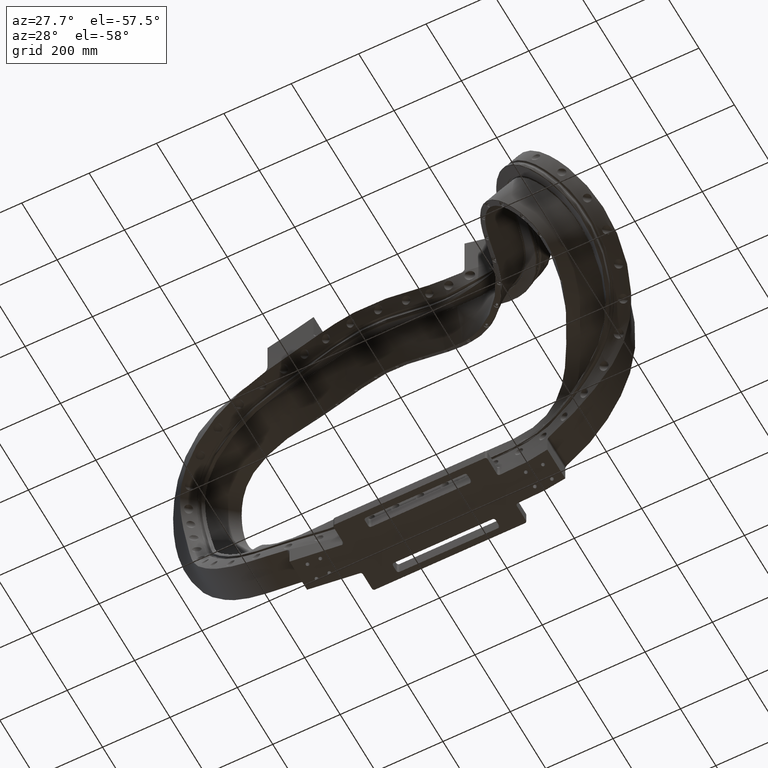
[diagram: clean part render]
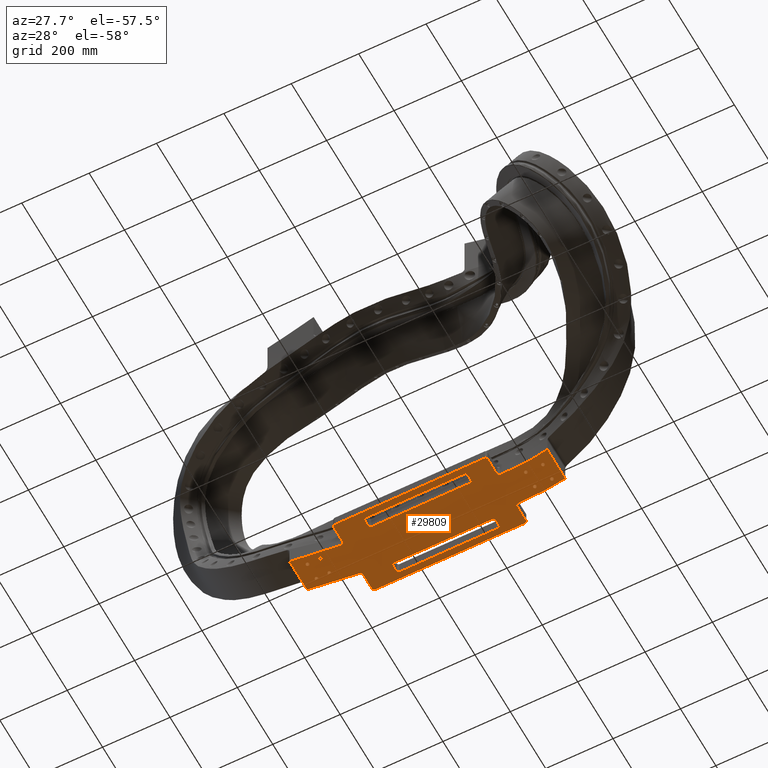
[diagram: same view with one face highlighted and labeled with its STEP entity id]
A machine part, auxiliary view. The second image highlights one B-rep face of the part: STEP entity #29809.
In plain terms, the highlighted planar face has unit normal (0, 0, 1).
Its self-contained STEP definition (entity closure, byte-faithful):
#2104=CARTESIAN_POINT('',(-6.25E0,-2.198911665966E0,-1.75E1));
#2105=DIRECTION('',(0.E0,0.E0,1.E0));
#2106=DIRECTION('',(1.E0,0.E0,0.E0));
#2107=AXIS2_PLACEMENT_3D('',#2104,#2105,#2106);
#2318=CARTESIAN_POINT('',(1.225E1,2.228150653155E0,-1.75E1));
#2319=DIRECTION('',(0.E0,0.E0,1.E0));
#2320=DIRECTION('',(-1.E0,0.E0,0.E0));
#2321=AXIS2_PLACEMENT_3D('',#2318,#2319,#2320);
#7294=CARTESIAN_POINT('',(1.8E1,1.573647857411E0,-1.75E1));
#7295=CARTESIAN_POINT('',(1.758986111454E1,1.647777544079E0,-1.75E1));
#7296=CARTESIAN_POINT('',(1.655270009245E1,1.805029458253E0,-1.75E1));
#7297=CARTESIAN_POINT('',(1.492958491415E1,1.935558353841E0,-1.75E1));
#7298=CARTESIAN_POINT('',(1.342222716420E1,1.971225090541E0,-1.75E1));
#7299=CARTESIAN_POINT('',(1.254631802311E1,1.977070630157E0,-1.75E1));
#7300=CARTESIAN_POINT('',(1.224909020015E1,1.978152308632E0,-1.75E1));
#7302=DIRECTION('',(0.E0,-1.E0,0.E0));
#7303=VECTOR('',#7302,2.021849346845E0);
#7304=CARTESIAN_POINT('',(1.2E1,4.25E0,-1.75E1));
#7305=LINE('',#7304,#7303);
#7306=CARTESIAN_POINT('',(1.175E1,4.25E0,-1.75E1));
#7307=DIRECTION('',(0.E0,0.E0,-1.E0));
#7308=DIRECTION('',(0.E0,1.E0,0.E0));
#7309=AXIS2_PLACEMENT_3D('',#7306,#7307,#7308);
#7311=DIRECTION('',(1.E0,0.E0,0.E0));
#7312=VECTOR('',#7311,1.75E1);
#7313=CARTESIAN_POINT('',(-5.75E0,4.5E0,-1.75E1));
#7314=LINE('',#7313,#7312);
#7315=CARTESIAN_POINT('',(-5.75E0,4.25E0,-1.75E1));
#7316=DIRECTION('',(0.E0,0.E0,-1.E0));
#7317=DIRECTION('',(-1.E0,0.E0,0.E0));
#7318=AXIS2_PLACEMENT_3D('',#7315,#7316,#7317);
#7320=DIRECTION('',(0.E0,1.E0,0.E0));
#7321=VECTOR('',#7320,2.005883960381E0);
#7322=CARTESIAN_POINT('',(-6.E0,2.244116039619E0,-1.75E1));
#7323=LINE('',#7322,#7321);
#7324=CARTESIAN_POINT('',(-6.235389363387E0,1.994543346205E0,-1.75E1));
#7325=CARTESIAN_POINT('',(-6.575664149607E0,1.974622772435E0,-1.75E1));
#7326=CARTESIAN_POINT('',(-7.438341765973E0,1.901887223503E0,-1.75E1));
#7327=CARTESIAN_POINT('',(-8.844647272770E0,1.685962256159E0,-1.75E1));
#7328=CARTESIAN_POINT('',(-1.041765306299E1,1.407770153295E0,-1.75E1));
#7329=CARTESIAN_POINT('',(-1.148499650619E1,1.284796230786E0,-1.75E1));
#7330=CARTESIAN_POINT('',(-1.2E1,1.247522495661E0,-1.75E1));
#7332=DIRECTION('',(0.E0,-1.E0,0.E0));
#7333=VECTOR('',#7332,3.894547487956E0);
#7334=CARTESIAN_POINT('',(-1.2E1,1.247522495661E0,-1.75E1));
#7335=LINE('',#7334,#7333);
#7336=CARTESIAN_POINT('',(-1.2E1,-2.647024992295E0,-1.75E1));
#7337=CARTESIAN_POINT('',(-1.147515806822E1,-2.617162721085E0,-1.75E1));
#7338=CARTESIAN_POINT('',(-1.065975321890E1,-2.538681203800E0,-1.75E1));
#7339=CARTESIAN_POINT('',(-9.574770886855E0,-2.382282303911E0,-1.75E1));
#7340=CARTESIAN_POINT('',(-8.498140849961E0,-2.209587277860E0,-1.75E1));
#7341=CARTESIAN_POINT('',(-7.402576861671E0,-2.042113127539E0,-1.75E1));
#7342=CARTESIAN_POINT('',(-6.575390467964E0,-1.969167538538E0,-1.75E1));
#7343=CARTESIAN_POINT('',(-6.265921048622E0,-1.949419140605E0,-1.75E1));
#7345=DIRECTION('',(0.E0,1.E0,0.E0));
#7346=VECTOR('',#7345,2.051088334034E0);
#7347=CARTESIAN_POINT('',(-6.E0,-4.25E0,-1.75E1));
#7348=LINE('',#7347,#7346);
#7349=CARTESIAN_POINT('',(-5.75E0,-4.25E0,-1.75E1));
#7350=DIRECTION('',(0.E0,0.E0,-1.E0));
#7351=DIRECTION('',(0.E0,-1.E0,0.E0));
#7352=AXIS2_PLACEMENT_3D('',#7349,#7350,#7351);
#7354=DIRECTION('',(-1.E0,0.E0,0.E0));
#7355=VECTOR('',#7354,1.75E1);
#7356=CARTESIAN_POINT('',(1.175E1,-4.5E0,-1.75E1));
#7357=LINE('',#7356,#7355);
#7358=CARTESIAN_POINT('',(1.175E1,-4.25E0,-1.75E1));
#7359=DIRECTION('',(0.E0,0.E0,-1.E0));
#7360=DIRECTION('',(1.E0,0.E0,0.E0));
#7361=AXIS2_PLACEMENT_3D('',#7358,#7359,#7360);
#7363=DIRECTION('',(0.E0,-1.E0,0.E0));
#7364=VECTOR('',#7363,2.038154202992E0);
#7365=CARTESIAN_POINT('',(1.2E1,-2.211845797008E0,-1.75E1));
#7366=LINE('',#7365,#7364);
#7367=CARTESIAN_POINT('',(1.225090990235E1,-1.961847452858E0,-1.75E1));
#7368=CARTESIAN_POINT('',(1.251486702471E1,-1.962808160043E0,-1.75E1));
#7369=CARTESIAN_POINT('',(1.328440960820E1,-1.967649651717E0,-1.75E1));
#7370=CARTESIAN_POINT('',(1.457298786828E1,-1.993693579347E0,-1.75E1));
#7371=CARTESIAN_POINT('',(1.612211315348E1,-2.102667733688E0,-1.75E1));
#7372=CARTESIAN_POINT('',(1.726699480316E1,-2.274617057738E0,-1.75E1));
#7373=CARTESIAN_POINT('',(1.789211775409E1,-2.398911459330E0,-1.75E1));
#7374=CARTESIAN_POINT('',(1.8E1,-2.421207084953E0,-1.75E1));
#7376=DIRECTION('',(0.E0,1.E0,0.E0));
#7377=VECTOR('',#7376,3.994854942363E0);
#7378=CARTESIAN_POINT('',(1.8E1,-2.421207084953E0,-1.75E1));
#7379=LINE('',#7378,#7377);
#7380=CARTESIAN_POINT('',(1.675E1,-1.E0,-1.75E1));
#7381=DIRECTION('',(0.E0,0.E0,-1.E0));
#7382=DIRECTION('',(-1.E0,0.E0,0.E0));
#7383=AXIS2_PLACEMENT_3D('',#7380,#7381,#7382);
#7385=CARTESIAN_POINT('',(1.675E1,-1.E0,-1.75E1));
#7386=DIRECTION('',(0.E0,0.E0,-1.E0));
#7387=DIRECTION('',(1.E0,0.E0,0.E0));
#7388=AXIS2_PLACEMENT_3D('',#7385,#7386,#7387);
#7390=CARTESIAN_POINT('',(1.475E1,-1.E0,-1.75E1));
#7391=DIRECTION('',(0.E0,0.E0,-1.E0));
#7392=DIRECTION('',(-1.E0,0.E0,0.E0));
#7393=AXIS2_PLACEMENT_3D('',#7390,#7391,#7392);
#7395=CARTESIAN_POINT('',(1.475E1,-1.E0,-1.75E1));
#7396=DIRECTION('',(0.E0,0.E0,-1.E0));
#7397=DIRECTION('',(1.E0,0.E0,0.E0));
#7398=AXIS2_PLACEMENT_3D('',#7395,#7396,#7397);
#7400=CARTESIAN_POINT('',(1.675E1,1.E0,-1.75E1));
#7401=DIRECTION('',(0.E0,0.E0,-1.E0));
#7402=DIRECTION('',(-1.E0,0.E0,0.E0));
#7403=AXIS2_PLACEMENT_3D('',#7400,#7401,#7402);
#7405=CARTESIAN_POINT('',(1.675E1,1.E0,-1.75E1));
#7406=DIRECTION('',(0.E0,0.E0,-1.E0));
#7407=DIRECTION('',(1.E0,0.E0,0.E0));
#7408=AXIS2_PLACEMENT_3D('',#7405,#7406,#7407);
#7410=CARTESIAN_POINT('',(1.475E1,1.E0,-1.75E1));
#7411=DIRECTION('',(0.E0,0.E0,-1.E0));
#7412=DIRECTION('',(-1.E0,0.E0,0.E0));
#7413=AXIS2_PLACEMENT_3D('',#7410,#7411,#7412);
#7415=CARTESIAN_POINT('',(1.475E1,1.E0,-1.75E1));
#7416=DIRECTION('',(0.E0,0.E0,-1.E0));
#7417=DIRECTION('',(1.E0,0.E0,0.E0));
#7418=AXIS2_PLACEMENT_3D('',#7415,#7416,#7417);
#7420=CARTESIAN_POINT('',(-1.05E1,-1.5E0,-1.75E1));
#7421=DIRECTION('',(0.E0,0.E0,-1.E0));
#7422=DIRECTION('',(-1.E0,0.E0,0.E0));
#7423=AXIS2_PLACEMENT_3D('',#7420,#7421,#7422);
#7425=CARTESIAN_POINT('',(-1.05E1,-1.5E0,-1.75E1));
#7426=DIRECTION('',(0.E0,0.E0,-1.E0));
#7427=DIRECTION('',(1.E0,0.E0,0.E0));
#7428=AXIS2_PLACEMENT_3D('',#7425,#7426,#7427);
#7430=CARTESIAN_POINT('',(-9.E0,-1.5E0,-1.75E1));
#7431=DIRECTION('',(0.E0,0.E0,-1.E0));
#7432=DIRECTION('',(-1.E0,0.E0,0.E0));
#7433=AXIS2_PLACEMENT_3D('',#7430,#7431,#7432);
#7435=CARTESIAN_POINT('',(-9.E0,-1.5E0,-1.75E1));
#7436=DIRECTION('',(0.E0,0.E0,-1.E0));
#7437=DIRECTION('',(1.E0,0.E0,0.E0));
#7438=AXIS2_PLACEMENT_3D('',#7435,#7436,#7437);
#7440=CARTESIAN_POINT('',(-1.05E1,5.E-1,-1.75E1));
#7441=DIRECTION('',(0.E0,0.E0,-1.E0));
#7442=DIRECTION('',(-1.E0,0.E0,0.E0));
#7443=AXIS2_PLACEMENT_3D('',#7440,#7441,#7442);
#7445=CARTESIAN_POINT('',(-1.05E1,5.E-1,-1.75E1));
#7446=DIRECTION('',(0.E0,0.E0,-1.E0));
#7447=DIRECTION('',(1.E0,0.E0,0.E0));
#7448=AXIS2_PLACEMENT_3D('',#7445,#7446,#7447);
#7450=CARTESIAN_POINT('',(-9.E0,5.E-1,-1.75E1));
#7451=DIRECTION('',(0.E0,0.E0,-1.E0));
#7452=DIRECTION('',(-1.E0,0.E0,0.E0));
#7453=AXIS2_PLACEMENT_3D('',#7450,#7451,#7452);
#7455=CARTESIAN_POINT('',(-9.E0,5.E-1,-1.75E1));
#7456=DIRECTION('',(0.E0,0.E0,-1.E0));
#7457=DIRECTION('',(1.E0,0.E0,0.E0));
#7458=AXIS2_PLACEMENT_3D('',#7455,#7456,#7457);
#7460=DIRECTION('',(0.E0,1.E0,0.E0));
#7461=VECTOR('',#7460,7.5E-1);
#7462=CARTESIAN_POINT('',(-2.75E0,2.75E0,-1.75E1));
#7463=LINE('',#7462,#7461);
#7464=DIRECTION('',(1.E0,0.E0,0.E0));
#7465=VECTOR('',#7464,1.15E1);
#7466=CARTESIAN_POINT('',(-2.5E0,3.75E0,-1.75E1));
#7467=LINE('',#7466,#7465);
#7468=DIRECTION('',(0.E0,-1.E0,0.E0));
#7469=VECTOR('',#7468,7.5E-1);
#7470=CARTESIAN_POINT('',(9.25E0,3.5E0,-1.75E1));
#7471=LINE('',#7470,#7469);
#7472=DIRECTION('',(-1.E0,0.E0,0.E0));
#7473=VECTOR('',#7472,1.15E1);
#7474=CARTESIAN_POINT('',(9.E0,2.5E0,-1.75E1));
#7475=LINE('',#7474,#7473);
#7476=DIRECTION('',(-1.E0,0.E0,0.E0));
#7477=VECTOR('',#7476,1.15E1);
#7478=CARTESIAN_POINT('',(9.E0,-3.75E0,-1.75E1));
#7479=LINE('',#7478,#7477);
#7480=DIRECTION('',(0.E0,1.E0,0.E0));
#7481=VECTOR('',#7480,7.5E-1);
#7482=CARTESIAN_POINT('',(-2.75E0,-3.5E0,-1.75E1));
#7483=LINE('',#7482,#7481);
#7484=DIRECTION('',(1.E0,0.E0,0.E0));
#7485=VECTOR('',#7484,1.15E1);
#7486=CARTESIAN_POINT('',(-2.5E0,-2.5E0,-1.75E1));
#7487=LINE('',#7486,#7485);
#7488=DIRECTION('',(0.E0,-1.E0,0.E0));
#7489=VECTOR('',#7488,7.5E-1);
#7490=CARTESIAN_POINT('',(9.25E0,-2.75E0,-1.75E1));
#7491=LINE('',#7490,#7489);
#7648=CARTESIAN_POINT('',(-6.25E0,2.244116039619E0,-1.75E1));
#7649=DIRECTION('',(0.E0,0.E0,1.E0));
#7650=DIRECTION('',(5.844254645334E-2,-9.982907736547E-1,0.E0));
#7651=AXIS2_PLACEMENT_3D('',#7648,#7649,#7650);
#7658=CARTESIAN_POINT('',(1.225E1,-2.211845797008E0,-1.75E1));
#7659=DIRECTION('',(0.E0,0.E0,1.E0));
#7660=DIRECTION('',(3.639609395030E-3,9.999933765998E-1,0.E0));
#7661=AXIS2_PLACEMENT_3D('',#7658,#7659,#7660);
#7890=CARTESIAN_POINT('',(-2.5E0,2.75E0,-1.75E1));
#7891=DIRECTION('',(0.E0,0.E0,1.E0));
#7892=DIRECTION('',(-1.E0,0.E0,0.E0));
#7893=AXIS2_PLACEMENT_3D('',#7890,#7891,#7892);
#7908=CARTESIAN_POINT('',(9.E0,2.75E0,-1.75E1));
#7909=DIRECTION('',(0.E0,0.E0,1.E0));
#7910=DIRECTION('',(0.E0,-1.E0,0.E0));
#7911=AXIS2_PLACEMENT_3D('',#7908,#7909,#7910);
#7926=CARTESIAN_POINT('',(9.E0,3.5E0,-1.75E1));
#7927=DIRECTION('',(0.E0,0.E0,1.E0));
#7928=DIRECTION('',(1.E0,0.E0,0.E0));
#7929=AXIS2_PLACEMENT_3D('',#7926,#7927,#7928);
#7944=CARTESIAN_POINT('',(-2.5E0,3.5E0,-1.75E1));
#7945=DIRECTION('',(0.E0,0.E0,1.E0));
#7946=DIRECTION('',(0.E0,1.E0,0.E0));
#7947=AXIS2_PLACEMENT_3D('',#7944,#7945,#7946);
#7962=CARTESIAN_POINT('',(-2.5E0,-3.5E0,-1.75E1));
#7963=DIRECTION('',(0.E0,0.E0,1.E0));
#7964=DIRECTION('',(-1.E0,0.E0,0.E0));
#7965=AXIS2_PLACEMENT_3D('',#7962,#7963,#7964);
#7980=CARTESIAN_POINT('',(-2.5E0,-2.75E0,-1.75E1));
#7981=DIRECTION('',(0.E0,0.E0,1.E0));
#7982=DIRECTION('',(0.E0,1.E0,0.E0));
#7983=AXIS2_PLACEMENT_3D('',#7980,#7981,#7982);
#7998=CARTESIAN_POINT('',(9.E0,-2.75E0,-1.75E1));
#7999=DIRECTION('',(0.E0,0.E0,1.E0));
#8000=DIRECTION('',(1.E0,0.E0,0.E0));
#8001=AXIS2_PLACEMENT_3D('',#7998,#7999,#8000);
#8016=CARTESIAN_POINT('',(9.E0,-3.5E0,-1.75E1));
#8017=DIRECTION('',(0.E0,0.E0,1.E0));
#8018=DIRECTION('',(0.E0,-1.E0,0.E0));
#8019=AXIS2_PLACEMENT_3D('',#8016,#8017,#8018);
#12440=CARTESIAN_POINT('',(-1.2E1,1.247522495661E0,-1.75E1));
#12441=CARTESIAN_POINT('',(-1.2E1,-2.647024992295E0,-1.75E1));
#12442=VERTEX_POINT('',#12440);
#12443=VERTEX_POINT('',#12441);
#12447=CARTESIAN_POINT('',(1.8E1,-2.421207084953E0,-1.75E1));
#12448=CARTESIAN_POINT('',(1.8E1,1.573647857411E0,-1.75E1));
#12449=VERTEX_POINT('',#12447);
#12450=VERTEX_POINT('',#12448);
#12520=CARTESIAN_POINT('',(-6.E0,-4.25E0,-1.75E1));
#12522=VERTEX_POINT('',#12520);
#12524=CARTESIAN_POINT('',(-5.75E0,-4.5E0,-1.75E1));
#12526=VERTEX_POINT('',#12524);
#12528=CARTESIAN_POINT('',(1.175E1,-4.5E0,-1.75E1));
#12530=VERTEX_POINT('',#12528);
#12532=CARTESIAN_POINT('',(1.2E1,-4.25E0,-1.75E1));
#12534=VERTEX_POINT('',#12532);
#12549=CARTESIAN_POINT('',(-6.265921048622E0,-1.949419140605E0,-1.75E1));
#12551=VERTEX_POINT('',#12549);
#12552=CARTESIAN_POINT('',(-6.E0,-2.198911665966E0,-1.75E1));
#12553=VERTEX_POINT('',#12552);
#12558=CARTESIAN_POINT('',(1.2E1,-2.211845797008E0,-1.75E1));
#12559=VERTEX_POINT('',#12558);
#12560=CARTESIAN_POINT('',(1.225090990235E1,-1.961847452858E0,-1.75E1));
#12562=VERTEX_POINT('',#12560);
#12564=CARTESIAN_POINT('',(1.2E1,4.25E0,-1.75E1));
#12566=VERTEX_POINT('',#12564);
#12568=CARTESIAN_POINT('',(1.175E1,4.5E0,-1.75E1));
#12570=VERTEX_POINT('',#12568);
#12572=CARTESIAN_POINT('',(-5.75E0,4.5E0,-1.75E1));
#12574=VERTEX_POINT('',#12572);
#12576=CARTESIAN_POINT('',(-6.E0,4.25E0,-1.75E1));
#12578=VERTEX_POINT('',#12576);
#12593=CARTESIAN_POINT('',(1.224909020015E1,1.978152308632E0,-1.75E1));
#12595=VERTEX_POINT('',#12593);
#12596=CARTESIAN_POINT('',(1.2E1,2.228150653155E0,-1.75E1));
#12597=VERTEX_POINT('',#12596);
#12602=CARTESIAN_POINT('',(-6.E0,2.244116039619E0,-1.75E1));
#12603=VERTEX_POINT('',#12602);
#12604=CARTESIAN_POINT('',(-6.235389363387E0,1.994543346205E0,-1.75E1));
#12606=VERTEX_POINT('',#12604);
#12694=CARTESIAN_POINT('',(1.653905E1,-1.E0,-1.75E1));
#12695=CARTESIAN_POINT('',(1.696095E1,-1.E0,-1.75E1));
#12696=VERTEX_POINT('',#12694);
#12697=VERTEX_POINT('',#12695);
#12704=CARTESIAN_POINT('',(1.453905E1,-1.E0,-1.75E1));
#12705=CARTESIAN_POINT('',(1.496095E1,-1.E0,-1.75E1));
#12706=VERTEX_POINT('',#12704);
#12707=VERTEX_POINT('',#12705);
#12714=CARTESIAN_POINT('',(1.653905E1,1.E0,-1.75E1));
#12715=CARTESIAN_POINT('',(1.696095E1,1.E0,-1.75E1));
#12716=VERTEX_POINT('',#12714);
#12717=VERTEX_POINT('',#12715);
#12724=CARTESIAN_POINT('',(1.453905E1,1.E0,-1.75E1));
#12725=CARTESIAN_POINT('',(1.496095E1,1.E0,-1.75E1));
#12726=VERTEX_POINT('',#12724);
#12727=VERTEX_POINT('',#12725);
#12734=CARTESIAN_POINT('',(-1.071095E1,-1.5E0,-1.75E1));
#12735=CARTESIAN_POINT('',(-1.028905E1,-1.5E0,-1.75E1));
#12736=VERTEX_POINT('',#12734);
#12737=VERTEX_POINT('',#12735);
#12744=CARTESIAN_POINT('',(-9.21095E0,-1.5E0,-1.75E1));
#12745=CARTESIAN_POINT('',(-8.78905E0,-1.5E0,-1.75E1));
#12746=VERTEX_POINT('',#12744);
#12747=VERTEX_POINT('',#12745);
#12754=CARTESIAN_POINT('',(-1.071095E1,5.E-1,-1.75E1));
#12755=CARTESIAN_POINT('',(-1.028905E1,5.E-1,-1.75E1));
#12756=VERTEX_POINT('',#12754);
#12757=VERTEX_POINT('',#12755);
#12764=CARTESIAN_POINT('',(-9.21095E0,5.E-1,-1.75E1));
#12765=CARTESIAN_POINT('',(-8.78905E0,5.E-1,-1.75E1));
#12766=VERTEX_POINT('',#12764);
#12767=VERTEX_POINT('',#12765);
#12768=CARTESIAN_POINT('',(-2.75E0,2.75E0,-1.75E1));
#12770=VERTEX_POINT('',#12768);
#12772=CARTESIAN_POINT('',(-2.5E0,2.5E0,-1.75E1));
#12774=VERTEX_POINT('',#12772);
#12776=CARTESIAN_POINT('',(-2.75E0,-3.5E0,-1.75E1));
#12778=VERTEX_POINT('',#12776);
#12780=CARTESIAN_POINT('',(-2.5E0,-3.75E0,-1.75E1));
#12782=VERTEX_POINT('',#12780);
#12784=CARTESIAN_POINT('',(-2.5E0,-2.5E0,-1.75E1));
#12786=VERTEX_POINT('',#12784);
#12788=CARTESIAN_POINT('',(-2.75E0,-2.75E0,-1.75E1));
#12790=VERTEX_POINT('',#12788);
#12792=CARTESIAN_POINT('',(-2.5E0,3.75E0,-1.75E1));
#12794=VERTEX_POINT('',#12792);
#12796=CARTESIAN_POINT('',(-2.75E0,3.5E0,-1.75E1));
#12798=VERTEX_POINT('',#12796);
#12800=CARTESIAN_POINT('',(9.E0,-3.75E0,-1.75E1));
#12802=VERTEX_POINT('',#12800);
#12804=CARTESIAN_POINT('',(9.25E0,-3.5E0,-1.75E1));
#12806=VERTEX_POINT('',#12804);
#12808=CARTESIAN_POINT('',(9.E0,2.5E0,-1.75E1));
#12810=VERTEX_POINT('',#12808);
#12812=CARTESIAN_POINT('',(9.25E0,2.75E0,-1.75E1));
#12814=VERTEX_POINT('',#12812);
#12816=CARTESIAN_POINT('',(9.25E0,-2.75E0,-1.75E1));
#12818=VERTEX_POINT('',#12816);
#12820=CARTESIAN_POINT('',(9.E0,-2.5E0,-1.75E1));
#12822=VERTEX_POINT('',#12820);
#12824=CARTESIAN_POINT('',(9.25E0,3.5E0,-1.75E1));
#12826=VERTEX_POINT('',#12824);
#12828=CARTESIAN_POINT('',(9.E0,3.75E0,-1.75E1));
#12830=VERTEX_POINT('',#12828);
#29685=CARTESIAN_POINT('',(0.E0,0.E0,-1.75E1));
#29686=DIRECTION('',(0.E0,0.E0,1.E0));
#29687=DIRECTION('',(0.E0,1.E0,0.E0));
#29688=AXIS2_PLACEMENT_3D('',#29685,#29686,#29687);
#29689=PLANE('',#29688);
#29690=ORIENTED_EDGE('',*,*,#17757,.T.);
#29691=ORIENTED_EDGE('',*,*,#17789,.F.);
#29693=ORIENTED_EDGE('',*,*,#29692,.F.);
#29695=ORIENTED_EDGE('',*,*,#29694,.F.);
#29697=ORIENTED_EDGE('',*,*,#29696,.F.);
#29699=ORIENTED_EDGE('',*,*,#29698,.F.);
#29701=ORIENTED_EDGE('',*,*,#29700,.F.);
#29703=ORIENTED_EDGE('',*,*,#29702,.F.);
#29704=ORIENTED_EDGE('',*,*,#17988,.T.);
#29705=ORIENTED_EDGE('',*,*,#29679,.T.);
#29706=ORIENTED_EDGE('',*,*,#17315,.T.);
#29707=ORIENTED_EDGE('',*,*,#17345,.F.);
#29709=ORIENTED_EDGE('',*,*,#29708,.F.);
#29711=ORIENTED_EDGE('',*,*,#29710,.F.);
#29713=ORIENTED_EDGE('',*,*,#29712,.F.);
#29715=ORIENTED_EDGE('',*,*,#29714,.F.);
#29717=ORIENTED_EDGE('',*,*,#29716,.F.);
#29719=ORIENTED_EDGE('',*,*,#29718,.F.);
#29720=ORIENTED_EDGE('',*,*,#17691,.T.);
#29722=ORIENTED_EDGE('',*,*,#29721,.T.);
#29723=EDGE_LOOP('',(#29690,#29691,#29693,#29695,#29697,#29699,#29701,#29703,
#29704,#29705,#29706,#29707,#29709,#29711,#29713,#29715,#29717,#29719,#29720,
#29722));
#29724=FACE_OUTER_BOUND('',#29723,.F.);
#29726=ORIENTED_EDGE('',*,*,#29725,.T.);
#29728=ORIENTED_EDGE('',*,*,#29727,.T.);
#29729=EDGE_LOOP('',(#29726,#29728));
#29730=FACE_BOUND('',#29729,.F.);
#29732=ORIENTED_EDGE('',*,*,#29731,.T.);
#29734=ORIENTED_EDGE('',*,*,#29733,.T.);
#29735=EDGE_LOOP('',(#29732,#29734));
#29736=FACE_BOUND('',#29735,.F.);
#29738=ORIENTED_EDGE('',*,*,#29737,.T.);
#29740=ORIENTED_EDGE('',*,*,#29739,.T.);
#29741=EDGE_LOOP('',(#29738,#29740));
#29742=FACE_BOUND('',#29741,.F.);
#29744=ORIENTED_EDGE('',*,*,#29743,.T.);
#29746=ORIENTED_EDGE('',*,*,#29745,.T.);
#29747=EDGE_LOOP('',(#29744,#29746));
#29748=FACE_BOUND('',#29747,.F.);
#29750=ORIENTED_EDGE('',*,*,#29749,.T.);
#29752=ORIENTED_EDGE('',*,*,#29751,.T.);
#29753=EDGE_LOOP('',(#29750,#29752));
#29754=FACE_BOUND('',#29753,.F.);
#29756=ORIENTED_EDGE('',*,*,#29755,.T.);
#29758=ORIENTED_EDGE('',*,*,#29757,.T.);
#29759=EDGE_LOOP('',(#29756,#29758));
#29760=FACE_BOUND('',#29759,.F.);
#29762=ORIENTED_EDGE('',*,*,#29761,.T.);
#29764=ORIENTED_EDGE('',*,*,#29763,.T.);
#29765=EDGE_LOOP('',(#29762,#29764));
#29766=FACE_BOUND('',#29765,.F.);
#29768=ORIENTED_EDGE('',*,*,#29767,.T.);
#29770=ORIENTED_EDGE('',*,*,#29769,.T.);
#29771=EDGE_LOOP('',(#29768,#29770));
#29772=FACE_BOUND('',#29771,.F.);
#29774=ORIENTED_EDGE('',*,*,#29773,.T.);
#29776=ORIENTED_EDGE('',*,*,#29775,.F.);
#29778=ORIENTED_EDGE('',*,*,#29777,.T.);
#29780=ORIENTED_EDGE('',*,*,#29779,.F.);
#29782=ORIENTED_EDGE('',*,*,#29781,.T.);
#29784=ORIENTED_EDGE('',*,*,#29783,.F.);
#29786=ORIENTED_EDGE('',*,*,#29785,.T.);
#29788=ORIENTED_EDGE('',*,*,#29787,.F.);
#29789=EDGE_LOOP('',(#29774,#29776,#29778,#29780,#29782,#29784,#29786,#29788));
#29790=FACE_BOUND('',#29789,.F.);
#29792=ORIENTED_EDGE('',*,*,#29791,.T.);
#29794=ORIENTED_EDGE('',*,*,#29793,.F.);
#29796=ORIENTED_EDGE('',*,*,#29795,.T.);
#29798=ORIENTED_EDGE('',*,*,#29797,.F.);
#29800=ORIENTED_EDGE('',*,*,#29799,.T.);
#29802=ORIENTED_EDGE('',*,*,#29801,.F.);
#29804=ORIENTED_EDGE('',*,*,#29803,.T.);
#29806=ORIENTED_EDGE('',*,*,#29805,.F.);
#29807=EDGE_LOOP('',(#29792,#29794,#29796,#29798,#29800,#29802,#29804,#29806));
#29808=FACE_BOUND('',#29807,.F.);
#29809=ADVANCED_FACE('',(#29724,#29730,#29736,#29742,#29748,#29754,#29760,
#29766,#29772,#29790,#29808),#29689,.F.);
#2108=CIRCLE('',#2107,2.5E-1);
#2322=CIRCLE('',#2321,2.5E-1);
#7301=B_SPLINE_CURVE_WITH_KNOTS('',3,(#7294,#7295,#7296,#7297,#7298,#7299,
#7300),.UNSPECIFIED.,.F.,.F.,(4,1,1,1,4),(0.E0,2.165331981507E-1,
5.447626389855E-1,8.455228075304E-1,1.E0),.UNSPECIFIED.);
#7310=CIRCLE('',#7309,2.5E-1);
#7319=CIRCLE('',#7318,2.5E-1);
#7331=B_SPLINE_CURVE_WITH_KNOTS('',3,(#7324,#7325,#7326,#7327,#7328,#7329,
#7330),.UNSPECIFIED.,.F.,.F.,(4,1,1,1,4),(0.E0,1.758030180303E-1,
4.463472480593E-1,7.336707455203E-1,1.E0),.UNSPECIFIED.);
#7344=B_SPLINE_CURVE_WITH_KNOTS('',3,(#7336,#7337,#7338,#7339,#7340,#7341,#7342,
#7343),.UNSPECIFIED.,.F.,.F.,(4,1,1,1,1,4),(0.E0,2.728814048408E-1,
4.248065996874E-1,5.691375269458E-1,8.390431496893E-1,1.E0),.UNSPECIFIED.);
#7353=CIRCLE('',#7352,2.5E-1);
#7362=CIRCLE('',#7361,2.5E-1);
#7375=B_SPLINE_CURVE_WITH_KNOTS('',3,(#7367,#7368,#7369,#7370,#7371,#7372,#7373,
#7374),.UNSPECIFIED.,.F.,.F.,(4,1,1,1,1,4),(0.E0,1.370570406377E-1,
3.995800333986E-1,6.691146408995E-1,9.428077283760E-1,1.E0),.UNSPECIFIED.);
#7384=CIRCLE('',#7383,2.1095E-1);
#7389=CIRCLE('',#7388,2.1095E-1);
#7394=CIRCLE('',#7393,2.1095E-1);
#7399=CIRCLE('',#7398,2.1095E-1);
#7404=CIRCLE('',#7403,2.1095E-1);
#7409=CIRCLE('',#7408,2.1095E-1);
#7414=CIRCLE('',#7413,2.1095E-1);
#7419=CIRCLE('',#7418,2.1095E-1);
#7424=CIRCLE('',#7423,2.1095E-1);
#7429=CIRCLE('',#7428,2.1095E-1);
#7434=CIRCLE('',#7433,2.1095E-1);
#7439=CIRCLE('',#7438,2.1095E-1);
#7444=CIRCLE('',#7443,2.1095E-1);
#7449=CIRCLE('',#7448,2.1095E-1);
#7454=CIRCLE('',#7453,2.1095E-1);
#7459=CIRCLE('',#7458,2.1095E-1);
#7652=CIRCLE('',#7651,2.5E-1);
#7662=CIRCLE('',#7661,2.5E-1);
#7894=CIRCLE('',#7893,2.5E-1);
#7912=CIRCLE('',#7911,2.5E-1);
#7930=CIRCLE('',#7929,2.5E-1);
#7948=CIRCLE('',#7947,2.5E-1);
#7966=CIRCLE('',#7965,2.5E-1);
#7984=CIRCLE('',#7983,2.5E-1);
#8002=CIRCLE('',#8001,2.5E-1);
#8020=CIRCLE('',#8019,2.5E-1);
#17315=EDGE_CURVE('',#12443,#12551,#7344,.T.);
#17345=EDGE_CURVE('',#12553,#12551,#2108,.T.);
#17691=EDGE_CURVE('',#12562,#12449,#7375,.T.);
#17757=EDGE_CURVE('',#12450,#12595,#7301,.T.);
#17789=EDGE_CURVE('',#12597,#12595,#2322,.T.);
#17988=EDGE_CURVE('',#12606,#12442,#7331,.T.);
#29679=EDGE_CURVE('',#12442,#12443,#7335,.T.);
#29692=EDGE_CURVE('',#12566,#12597,#7305,.T.);
#29694=EDGE_CURVE('',#12570,#12566,#7310,.T.);
#29696=EDGE_CURVE('',#12574,#12570,#7314,.T.);
#29698=EDGE_CURVE('',#12578,#12574,#7319,.T.);
#29700=EDGE_CURVE('',#12603,#12578,#7323,.T.);
#29702=EDGE_CURVE('',#12606,#12603,#7652,.T.);
#29708=EDGE_CURVE('',#12522,#12553,#7348,.T.);
#29710=EDGE_CURVE('',#12526,#12522,#7353,.T.);
#29712=EDGE_CURVE('',#12530,#12526,#7357,.T.);
#29714=EDGE_CURVE('',#12534,#12530,#7362,.T.);
#29716=EDGE_CURVE('',#12559,#12534,#7366,.T.);
#29718=EDGE_CURVE('',#12562,#12559,#7662,.T.);
#29721=EDGE_CURVE('',#12449,#12450,#7379,.T.);
#29725=EDGE_CURVE('',#12696,#12697,#7384,.T.);
#29727=EDGE_CURVE('',#12697,#12696,#7389,.T.);
#29731=EDGE_CURVE('',#12706,#12707,#7394,.T.);
#29733=EDGE_CURVE('',#12707,#12706,#7399,.T.);
#29737=EDGE_CURVE('',#12716,#12717,#7404,.T.);
#29739=EDGE_CURVE('',#12717,#12716,#7409,.T.);
#29743=EDGE_CURVE('',#12726,#12727,#7414,.T.);
#29745=EDGE_CURVE('',#12727,#12726,#7419,.T.);
#29749=EDGE_CURVE('',#12736,#12737,#7424,.T.);
#29751=EDGE_CURVE('',#12737,#12736,#7429,.T.);
#29755=EDGE_CURVE('',#12746,#12747,#7434,.T.);
#29757=EDGE_CURVE('',#12747,#12746,#7439,.T.);
#29761=EDGE_CURVE('',#12756,#12757,#7444,.T.);
#29763=EDGE_CURVE('',#12757,#12756,#7449,.T.);
#29767=EDGE_CURVE('',#12766,#12767,#7454,.T.);
#29769=EDGE_CURVE('',#12767,#12766,#7459,.T.);
#29773=EDGE_CURVE('',#12770,#12798,#7463,.T.);
#29775=EDGE_CURVE('',#12794,#12798,#7948,.T.);
#29777=EDGE_CURVE('',#12794,#12830,#7467,.T.);
#29779=EDGE_CURVE('',#12826,#12830,#7930,.T.);
#29781=EDGE_CURVE('',#12826,#12814,#7471,.T.);
#29783=EDGE_CURVE('',#12810,#12814,#7912,.T.);
#29785=EDGE_CURVE('',#12810,#12774,#7475,.T.);
#29787=EDGE_CURVE('',#12770,#12774,#7894,.T.);
#29791=EDGE_CURVE('',#12802,#12782,#7479,.T.);
#29793=EDGE_CURVE('',#12778,#12782,#7966,.T.);
#29795=EDGE_CURVE('',#12778,#12790,#7483,.T.);
#29797=EDGE_CURVE('',#12786,#12790,#7984,.T.);
#29799=EDGE_CURVE('',#12786,#12822,#7487,.T.);
#29801=EDGE_CURVE('',#12818,#12822,#8002,.T.);
#29803=EDGE_CURVE('',#12818,#12806,#7491,.T.);
#29805=EDGE_CURVE('',#12802,#12806,#8020,.T.);